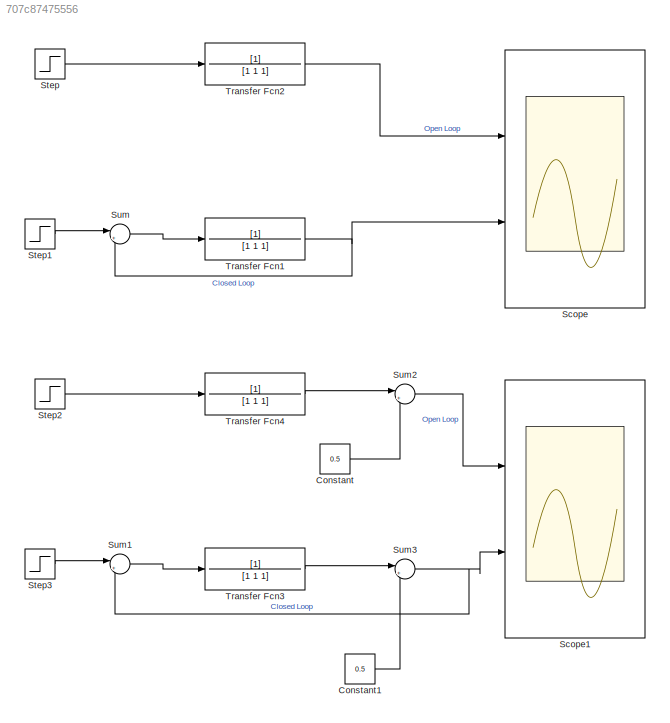
MODEL slx_707c87475556
KIND model
CONFIG AbsTol = auto
CONFIG EnableMultiTasking = off
CONFIG FixedStep = auto
CONFIG MaxStep = auto
CONFIG MinStep = auto
CONFIG RelTol = 1e-3
CONFIG SampleTimeConstraint = Unconstrained
CONFIG SolverName = VariableStepAuto
CONFIG StartTime = 0.0
CONFIG StopTime = 10.0
BLOCK [Constant] Constant
  Value = 0.5
BLOCK [Constant] Constant1
  Value = 0.5
BLOCK [Scope] Scope
  Floating = off
  NumInputPorts = 2
  Ports = [2]
  ScopeSpecificationString = Simulink.scopes.TimeScopeBlockCfg('CurrentConfiguration', extmgr.ConfigurationSet(extmgr.Configuration('Core','General UI',true),extmgr.Configuration('Core','Source UI',true),extmgr.Configuration('Sources','WiredSimulink',true),extmgr.Configuration('Visuals','Time Domain',true,'SerializedDisplays',{struct('MinYLimReal','-0.1631','MaxYLimReal','1.46792','YLabelReal','','MinYLimMag','0.00000','MaxYL...<+1390ch>
BLOCK [Scope] Scope1
  Floating = off
  NumInputPorts = 2
  Ports = [2]
  ScopeSpecificationString = Simulink.scopes.TimeScopeBlockCfg('CurrentConfiguration', extmgr.ConfigurationSet(extmgr.Configuration('Core','General UI',true),extmgr.Configuration('Core','Source UI',true),extmgr.Configuration('Sources','WiredSimulink',true,'DataLoggingVariableName','ScopeData1'),extmgr.Configuration('Visuals','Time Domain',true,'SerializedDisplays',{struct('MinYLimReal','-0.64537','MaxYLimReal','0.80834','YLab...<+1434ch>
BLOCK [Step] Step
  SampleTime = 0
BLOCK [Step] Step1
  SampleTime = 0
BLOCK [Step] Step2
  SampleTime = 0
BLOCK [Step] Step3
  SampleTime = 0
BLOCK [Sum] Sum
  Inputs = |+-
  Ports = [2, 1]
BLOCK [Sum] Sum1
  Inputs = |+-
  Ports = [2, 1]
BLOCK [Sum] Sum2
  Inputs = |+-
  Ports = [2, 1]
BLOCK [Sum] Sum3
  Inputs = |+-
  Ports = [2, 1]
BLOCK [TransferFcn] Transfer Fcn1
  Denominator = [1 1 1]
BLOCK [TransferFcn] Transfer Fcn2
  Denominator = [1 1 1]
BLOCK [TransferFcn] Transfer Fcn3
  Denominator = [1 1 1]
BLOCK [TransferFcn] Transfer Fcn4
  Denominator = [1 1 1]
LINE Constant1:1 -> Sum3:2
LINE Constant:1 -> Sum2:2
LINE Step1:1 -> Sum:1
LINE Step2:1 -> Transfer Fcn4:1
LINE Step3:1 -> Sum1:1
LINE Step:1 -> Transfer Fcn2:1
LINE Sum1:1 -> Transfer Fcn3:1
LINE Sum2:1 -> Scope1:1
NET Sum3:1 -> Scope1:2, Sum1:2
LINE Sum:1 -> Transfer Fcn1:1
NET Transfer Fcn1:1 -> Scope:2, Sum:2
LINE Transfer Fcn2:1 -> Scope:1
LINE Transfer Fcn3:1 -> Sum3:1
LINE Transfer Fcn4:1 -> Sum2:1
note: NET lines group one-source signal fan-out (src -> all destinations, sorted); 1:1 wires keep LINE
